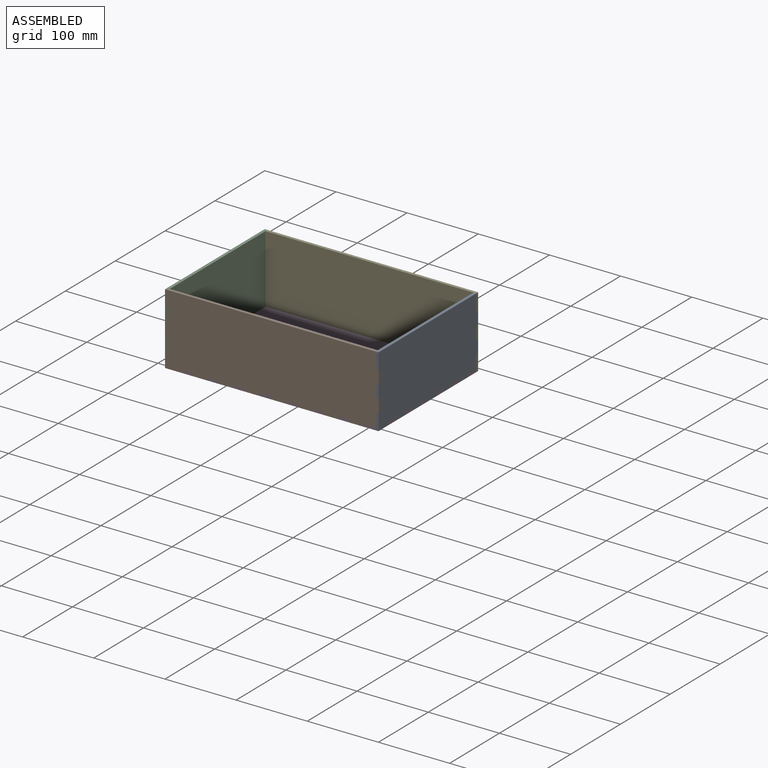
[diagram: assembled view]
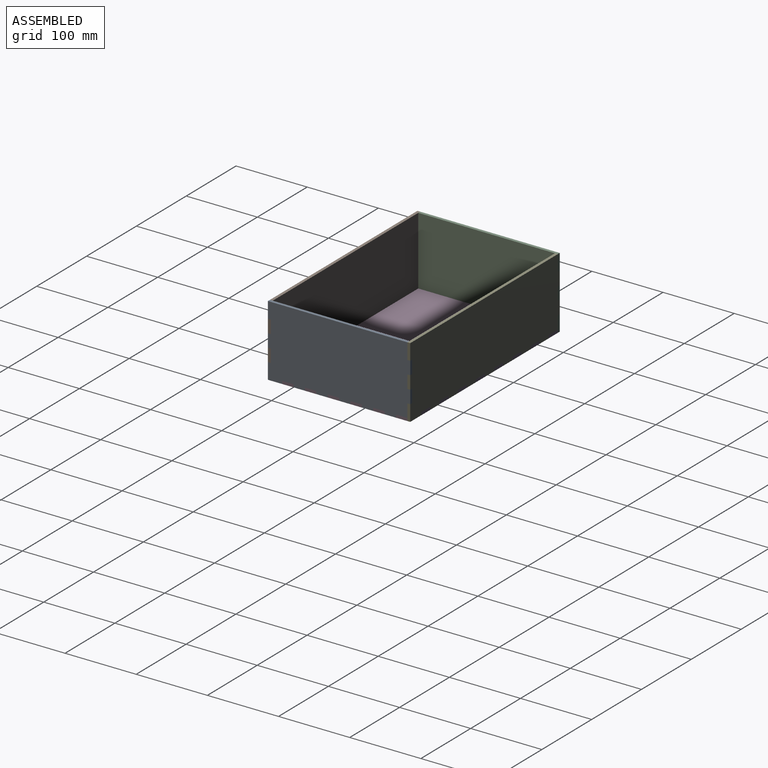
[diagram: assembled view, second angle]
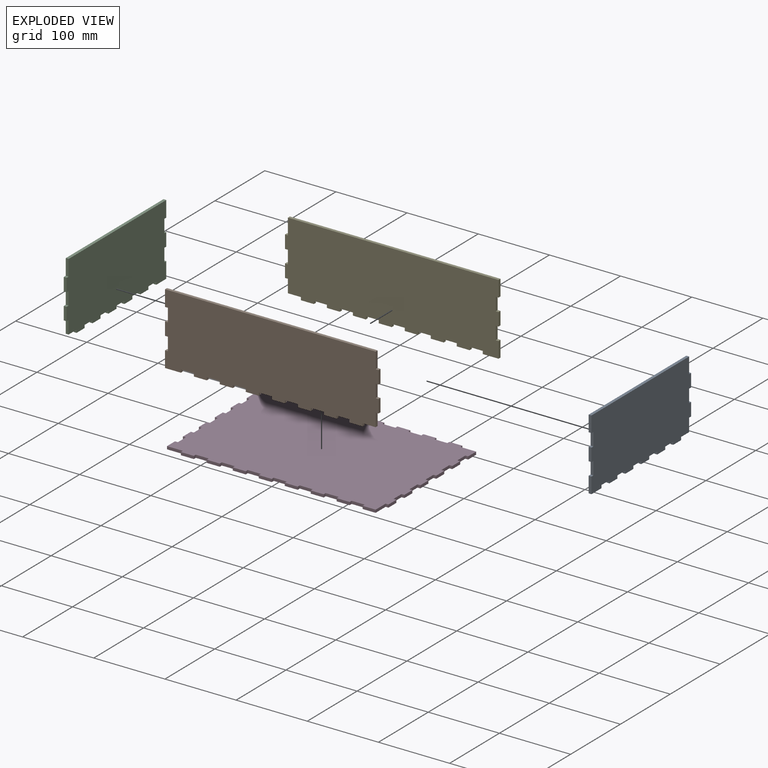
[diagram: exploded view]
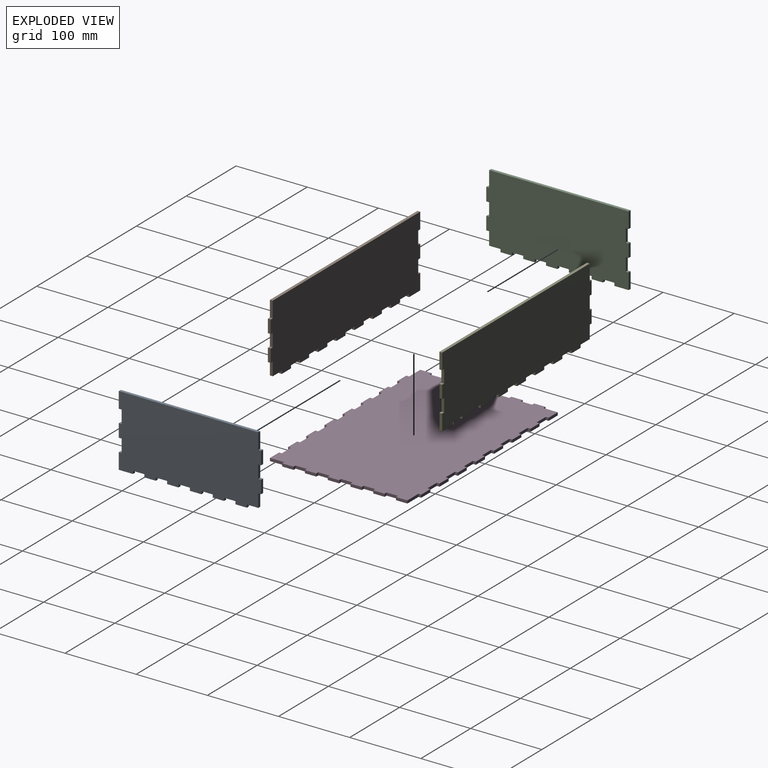
[diagram: exploded view, second angle]
ASSEMBLY  parts=5 mates=4
PART A: 44 faces, bbox 4x200x100 mm
  f0: plane 200x100mm, normal (-1,0,0), area 19216mm2, adj f1,f2,f3,f4,f5,f6,f7,f8
  f1: plane 22.4x4mm, normal (0,-1,0), area 89.6mm2, adj f0,f2,f42,f43
  f2: plane 196x4mm, normal (0,0,1), area 784mm2, adj f0,f1,f3,f43
  f3: plane 22.4x4mm, normal (0,1,0), area 89.6mm2, adj f0,f2,f4,f43
  f4: plane 4x4mm, normal (0,0,-1), area 16mm2, adj f0,f3,f5,f43
  f5: plane 18.4x4mm, normal (0,1,0), area 73.6mm2, adj f0,f4,f6,f43
  f6: plane 4x4mm, normal (0,0,1), area 16mm2, adj f0,f5,f7,f43
  f7: plane 18.4x4mm, normal (0,1,0), area 73.6mm2, adj f0,f6,f8,f43
  f8: plane 4x4mm, normal (0,0,-1), area 16mm2, adj f0,f7,f9,f43
  f9: plane 18.4x4mm, normal (0,1,0), area 73.6mm2, adj f0,f8,f10,f43
  f10: plane 4x4mm, normal (0,0,1), area 16mm2, adj f0,f9,f11,f43
  f11: plane 22.4x4mm, normal (0,1,0), area 89.6mm2, adj f0,f10,f12,f43
  f12: plane 20x4mm, normal (0,0,-1), area 80mm2, adj f0,f11,f13,f43
  f13: plane 4x4mm, normal (0,-1,0), area 16mm2, adj f0,f12,f14,f43
  f14: plane 16x4mm, normal (0,0,-1), area 64mm2, adj f0,f13,f15,f43
  f15: plane 4x4mm, normal (0,1,0), area 16mm2, adj f0,f14,f16,f43
  f16: plane 16x4mm, normal (0,0,-1), area 64mm2, adj f0,f15,f17,f43
  f17: plane 4x4mm, normal (0,-1,0), area 16mm2, adj f0,f16,f18,f43
  f18: plane 16x4mm, normal (0,0,-1), area 64mm2, adj f0,f17,f19,f43
  f19: plane 4x4mm, normal (0,1,0), area 16mm2, adj f0,f18,f20,f43
  f20: plane 16x4mm, normal (0,0,-1), area 64mm2, adj f0,f19,f21,f43
  f21: plane 4x4mm, normal (0,-1,0), area 16mm2, adj f0,f20,f22,f43
  f22: plane 16x4mm, normal (0,0,-1), area 64mm2, adj f0,f21,f23,f43
  f23: plane 4x4mm, normal (0,1,0), area 16mm2, adj f0,f22,f24,f43
  f24: plane 16x4mm, normal (0,0,-1), area 64mm2, adj f0,f23,f25,f43
  f25: plane 4x4mm, normal (0,-1,0), area 16mm2, adj f0,f24,f26,f43
  f26: plane 16x4mm, normal (0,0,-1), area 64mm2, adj f0,f25,f27,f43
  f27: plane 4x4mm, normal (0,1,0), area 16mm2, adj f0,f26,f28,f43
  f28: plane 16x4mm, normal (0,0,-1), area 64mm2, adj f0,f27,f29,f43
  f29: plane 4x4mm, normal (0,-1,0), area 16mm2, adj f0,f28,f30,f43
  f30: plane 16x4mm, normal (0,0,-1), area 64mm2, adj f0,f29,f31,f43
  f31: plane 4x4mm, normal (0,1,0), area 16mm2, adj f0,f30,f32,f43
  f32: plane 16x4mm, normal (0,0,-1), area 64mm2, adj f0,f31,f33,f43
  f33: plane 4x4mm, normal (0,-1,0), area 16mm2, adj f0,f32,f34,f43
  f34: plane 16x4mm, normal (0,0,-1), area 64mm2, adj f0,f33,f35,f43
  f35: plane 18.4x4mm, normal (0,-1,0), area 73.6mm2, adj f0,f34,f36,f43
  f36: plane 4x4mm, normal (0,0,-1), area 16mm2, adj f0,f35,f37,f43
  f37: plane 18.4x4mm, normal (0,-1,0), area 73.6mm2, adj f0,f36,f38,f43
  f38: plane 4x4mm, normal (0,0,1), area 16mm2, adj f0,f37,f39,f43
  f39: plane 18.4x4mm, normal (0,-1,0), area 73.6mm2, adj f0,f38,f40,f43
  f40: plane 4x4mm, normal (0,0,-1), area 16mm2, adj f0,f39,f41,f43
  f41: plane 18.4x4mm, normal (0,-1,0), area 73.6mm2, adj f0,f40,f42,f43
  f42: plane 4x4mm, normal (0,0,1), area 16mm2, adj f0,f1,f41,f43
  f43: plane 200x100mm, normal (1,0,0), area 19216mm2, adj f1,f2,f3,f4,f5,f6,f7,f8
PART B: 52 faces, bbox 300x4x100 mm
  f0: plane 300x100mm, normal (0,-1,0), area 29016mm2, adj f1,f2,f3,f4,f5,f6,f7,f8
  f1: plane 4x4mm, normal (0,0,1), area 16mm2, adj f0,f2,f48,f50
  f2: plane 22.4x4mm, normal (-1,0,0), area 89.6mm2, adj f0,f1,f3,f48
  f3: plane 22.25x4mm, normal (0,0,-1), area 89mm2, adj f0,f2,f4,f48
  f4: plane 4x4mm, normal (1,0,0), area 16mm2, adj f0,f3,f5,f48
  f5: plane 18.25x4mm, normal (0,0,-1), area 73mm2, adj f0,f4,f6,f48
  f6: plane 4x4mm, normal (-1,0,0), area 16mm2, adj f0,f5,f7,f48
  f7: plane 18.25x4mm, normal (0,0,-1), area 73mm2, adj f0,f6,f8,f48
  f8: plane 4x4mm, normal (1,0,0), area 16mm2, adj f0,f7,f9,f48
  f9: plane 18.25x4mm, normal (0,0,-1), area 73mm2, adj f0,f8,f10,f48
  f10: plane 4x4mm, normal (-1,0,0), area 16mm2, adj f0,f9,f11,f48
  f11: plane 18.25x4mm, normal (0,0,-1), area 73mm2, adj f0,f10,f12,f48
  f12: plane 4x4mm, normal (1,0,0), area 16mm2, adj f0,f11,f13,f48
  f13: plane 18.25x4mm, normal (0,0,-1), area 73mm2, adj f0,f12,f14,f48
  f14: plane 4x4mm, normal (-1,0,0), area 16mm2, adj f0,f13,f15,f48
  f15: plane 18.25x4mm, normal (0,0,-1), area 73mm2, adj f0,f14,f16,f48
  f16: plane 4x4mm, normal (1,0,0), area 16mm2, adj f0,f15,f17,f48
  f17: plane 18.25x4mm, normal (0,0,-1), area 73mm2, adj f0,f16,f18,f48
  f18: plane 4x4mm, normal (-1,0,0), area 16mm2, adj f0,f17,f19,f48
  f19: plane 18.25x4mm, normal (0,0,-1), area 73mm2, adj f0,f18,f20,f48
  f20: plane 4x4mm, normal (1,0,0), area 16mm2, adj f0,f19,f21,f48
  f21: plane 18.25x4mm, normal (0,0,-1), area 73mm2, adj f0,f20,f22,f48
  f22: plane 4x4mm, normal (-1,0,0), area 16mm2, adj f0,f21,f23,f48
  f23: plane 18.25x4mm, normal (0,0,-1), area 73mm2, adj f0,f22,f24,f48
  f24: plane 4x4mm, normal (1,0,0), area 16mm2, adj f0,f23,f25,f48
  f25: plane 18.25x4mm, normal (0,0,-1), area 73mm2, adj f0,f24,f26,f48
  f26: plane 4x4mm, normal (-1,0,0), area 16mm2, adj f0,f25,f27,f48
  f27: plane 18.25x4mm, normal (0,0,-1), area 73mm2, adj f0,f26,f28,f48
  f28: plane 4x4mm, normal (1,0,0), area 16mm2, adj f0,f27,f29,f48
  f29: plane 18.25x4mm, normal (0,0,-1), area 73mm2, adj f0,f28,f30,f48
  f30: plane 4x4mm, normal (-1,0,0), area 16mm2, adj f0,f29,f31,f48
  f31: plane 18.25x4mm, normal (0,0,-1), area 73mm2, adj f0,f30,f32,f48
  f32: plane 4x4mm, normal (1,0,0), area 16mm2, adj f0,f31,f33,f48
  f33: plane 18.25x4mm, normal (0,0,-1), area 73mm2, adj f0,f32,f34,f48
  f34: plane 18.4x4mm, normal (1,0,0), area 73.6mm2, adj f0,f33,f35,f48
  f35: plane 4x4mm, normal (0,0,-1), area 16mm2, adj f0,f34,f36,f48
  f36: plane 18.4x4mm, normal (1,0,0), area 73.6mm2, adj f0,f35,f37,f48
  f37: plane 4x4mm, normal (0,0,1), area 16mm2, adj f0,f36,f38,f48
  f38: plane 18.4x4mm, normal (1,0,0), area 73.6mm2, adj f0,f37,f39,f48
  f39: plane 4x4mm, normal (0,0,-1), area 16mm2, adj f0,f38,f40,f48
  f40: plane 18.4x4mm, normal (1,0,0), area 73.6mm2, adj f0,f39,f41,f48
  f41: plane 4x4mm, normal (0,0,1), area 16mm2, adj f0,f40,f42,f48
  f42: plane 22.4x4mm, normal (1,0,0), area 89.6mm2, adj f0,f41,f43,f48
  f43: plane 296x4mm, normal (0,0,1), area 1184mm2, adj f0,f42,f44,f48
  f44: plane 22.4x4mm, normal (-1,0,0), area 89.6mm2, adj f0,f43,f45,f48
  f45: plane 4x4mm, normal (0,0,-1), area 16mm2, adj f0,f44,f46,f48
  f46: plane 18.4x4mm, normal (-1,0,0), area 73.6mm2, adj f0,f45,f47,f48
  f47: plane 4x4mm, normal (0,0,1), area 16mm2, adj f0,f46,f48,f49
  f48: plane 300x100mm, normal (0,1,0), area 29016mm2, adj f1,f2,f3,f4,f5,f6,f7,f8
  f49: plane 18.4x4mm, normal (-1,0,0), area 73.6mm2, adj f0,f47,f48,f51
  f50: plane 18.4x4mm, normal (-1,0,0), area 73.6mm2, adj f0,f1,f48,f51
  f51: plane 4x4mm, normal (0,0,-1), area 16mm2, adj f0,f48,f49,f50
PART C: same geometry as A
PART D: 110 faces, bbox 300x200x4 mm
  f0: plane 22.25x4mm, normal (0,-1,0), area 89mm2, adj f1,f107,f108,f109
  f1: plane 4x4mm, normal (-1,0,0), area 16mm2, adj f0,f2,f108,f109
  f2: plane 18.25x4mm, normal (0,-1,0), area 73mm2, adj f1,f3,f108,f109
  f3: plane 4x4mm, normal (1,0,0), area 16mm2, adj f2,f4,f108,f109
  f4: plane 18.25x4mm, normal (0,-1,0), area 73mm2, adj f3,f5,f108,f109
  f5: plane 4x4mm, normal (-1,0,0), area 16mm2, adj f4,f6,f108,f109
  f6: plane 18.25x4mm, normal (0,-1,0), area 73mm2, adj f5,f7,f108,f109
  f7: plane 4x4mm, normal (1,0,0), area 16mm2, adj f6,f8,f108,f109
  f8: plane 18.25x4mm, normal (0,-1,0), area 73mm2, adj f7,f9,f108,f109
  f9: plane 4x4mm, normal (-1,0,0), area 16mm2, adj f8,f10,f108,f109
  f10: plane 18.25x4mm, normal (0,-1,0), area 73mm2, adj f9,f11,f108,f109
  f11: plane 4x4mm, normal (1,0,0), area 16mm2, adj f10,f12,f108,f109
  f12: plane 18.25x4mm, normal (0,-1,0), area 73mm2, adj f11,f13,f108,f109
  f13: plane 4x4mm, normal (-1,0,0), area 16mm2, adj f12,f14,f108,f109
  f14: plane 18.25x4mm, normal (0,-1,0), area 73mm2, adj f13,f15,f108,f109
  f15: plane 4x4mm, normal (1,0,0), area 16mm2, adj f14,f16,f108,f109
  f16: plane 18.25x4mm, normal (0,-1,0), area 73mm2, adj f15,f17,f108,f109
  f17: plane 4x4mm, normal (-1,0,0), area 16mm2, adj f16,f18,f108,f109
  f18: plane 18.25x4mm, normal (0,-1,0), area 73mm2, adj f17,f19,f108,f109
  f19: plane 4x4mm, normal (1,0,0), area 16mm2, adj f18,f20,f108,f109
  f20: plane 18.25x4mm, normal (0,-1,0), area 73mm2, adj f19,f21,f108,f109
  f21: plane 4x4mm, normal (-1,0,0), area 16mm2, adj f20,f22,f108,f109
  f22: plane 18.25x4mm, normal (0,-1,0), area 73mm2, adj f21,f23,f108,f109
  f23: plane 4x4mm, normal (1,0,0), area 16mm2, adj f22,f24,f108,f109
  f24: plane 18.25x4mm, normal (0,-1,0), area 73mm2, adj f23,f25,f108,f109
  f25: plane 4x4mm, normal (-1,0,0), area 16mm2, adj f24,f26,f108,f109
  f26: plane 18.25x4mm, normal (0,-1,0), area 73mm2, adj f25,f27,f108,f109
  f27: plane 4x4mm, normal (1,0,0), area 16mm2, adj f26,f28,f108,f109
  f28: plane 18.25x4mm, normal (0,-1,0), area 73mm2, adj f27,f29,f108,f109
  f29: plane 4x4mm, normal (-1,0,0), area 16mm2, adj f28,f30,f108,f109
  f30: plane 18.25x4mm, normal (0,-1,0), area 73mm2, adj f29,f31,f108,f109
  f31: plane 20x4mm, normal (1,0,0), area 80mm2, adj f30,f32,f108,f109
  f32: plane 4x4mm, normal (0,-1,0), area 16mm2, adj f31,f33,f108,f109
  f33: plane 16x4mm, normal (1,0,0), area 64mm2, adj f32,f34,f108,f109
  f34: plane 4x4mm, normal (0,1,0), area 16mm2, adj f33,f35,f108,f109
  f35: plane 16x4mm, normal (1,0,0), area 64mm2, adj f34,f36,f108,f109
  f36: plane 4x4mm, normal (0,-1,0), area 16mm2, adj f35,f37,f108,f109
  f37: plane 16x4mm, normal (1,0,0), area 64mm2, adj f36,f38,f108,f109
  f38: plane 4x4mm, normal (0,1,0), area 16mm2, adj f37,f39,f108,f109
  f39: plane 16x4mm, normal (1,0,0), area 64mm2, adj f38,f40,f108,f109
  f40: plane 4x4mm, normal (0,-1,0), area 16mm2, adj f39,f41,f108,f109
  f41: plane 16x4mm, normal (1,0,0), area 64mm2, adj f40,f42,f108,f109
  f42: plane 4x4mm, normal (0,1,0), area 16mm2, adj f41,f43,f108,f109
  f43: plane 16x4mm, normal (1,0,0), area 64mm2, adj f42,f44,f108,f109
  f44: plane 4x4mm, normal (0,-1,0), area 16mm2, adj f43,f45,f108,f109
  f45: plane 16x4mm, normal (1,0,0), area 64mm2, adj f44,f46,f108,f109
  f46: plane 4x4mm, normal (0,1,0), area 16mm2, adj f45,f47,f108,f109
  f47: plane 16x4mm, normal (1,0,0), area 64mm2, adj f46,f48,f108,f109
  f48: plane 4x4mm, normal (0,-1,0), area 16mm2, adj f47,f49,f108,f109
  f49: plane 16x4mm, normal (1,0,0), area 64mm2, adj f48,f50,f108,f109
  f50: plane 4x4mm, normal (0,1,0), area 16mm2, adj f49,f51,f108,f109
  f51: plane 16x4mm, normal (1,0,0), area 64mm2, adj f50,f52,f108,f109
  f52: plane 4x4mm, normal (0,-1,0), area 16mm2, adj f51,f53,f108,f109
  f53: plane 16x4mm, normal (1,0,0), area 64mm2, adj f52,f54,f108,f109
  f54: plane 22.25x4mm, normal (0,1,0), area 89mm2, adj f53,f55,f108,f109
  f55: plane 4x4mm, normal (1,0,0), area 16mm2, adj f54,f56,f108,f109
  f56: plane 18.25x4mm, normal (0,1,0), area 73mm2, adj f55,f57,f108,f109
  f57: plane 4x4mm, normal (-1,0,0), area 16mm2, adj f56,f58,f108,f109
  f58: plane 18.25x4mm, normal (0,1,0), area 73mm2, adj f57,f59,f108,f109
  f59: plane 4x4mm, normal (1,0,0), area 16mm2, adj f58,f60,f108,f109
  f60: plane 18.25x4mm, normal (0,1,0), area 73mm2, adj f59,f61,f108,f109
  f61: plane 4x4mm, normal (-1,0,0), area 16mm2, adj f60,f62,f108,f109
  f62: plane 18.25x4mm, normal (0,1,0), area 73mm2, adj f61,f63,f108,f109
  f63: plane 4x4mm, normal (1,0,0), area 16mm2, adj f62,f64,f108,f109
  f64: plane 18.25x4mm, normal (0,1,0), area 73mm2, adj f63,f65,f108,f109
  f65: plane 4x4mm, normal (-1,0,0), area 16mm2, adj f64,f66,f108,f109
  f66: plane 18.25x4mm, normal (0,1,0), area 73mm2, adj f65,f67,f108,f109
  f67: plane 4x4mm, normal (1,0,0), area 16mm2, adj f66,f68,f108,f109
  f68: plane 18.25x4mm, normal (0,1,0), area 73mm2, adj f67,f69,f108,f109
  f69: plane 4x4mm, normal (-1,0,0), area 16mm2, adj f68,f70,f108,f109
  f70: plane 18.25x4mm, normal (0,1,0), area 73mm2, adj f69,f71,f108,f109
  f71: plane 4x4mm, normal (1,0,0), area 16mm2, adj f70,f72,f108,f109
  f72: plane 18.25x4mm, normal (0,1,0), area 73mm2, adj f71,f73,f108,f109
  f73: plane 4x4mm, normal (-1,0,0), area 16mm2, adj f72,f74,f108,f109
  f74: plane 18.25x4mm, normal (0,1,0), area 73mm2, adj f73,f75,f108,f109
  f75: plane 4x4mm, normal (1,0,0), area 16mm2, adj f74,f76,f108,f109
  f76: plane 18.25x4mm, normal (0,1,0), area 73mm2, adj f75,f77,f108,f109
  f77: plane 4x4mm, normal (-1,0,0), area 16mm2, adj f76,f78,f108,f109
  f78: plane 18.25x4mm, normal (0,1,0), area 73mm2, adj f77,f79,f108,f109
  f79: plane 4x4mm, normal (1,0,0), area 16mm2, adj f78,f80,f108,f109
  f80: plane 18.25x4mm, normal (0,1,0), area 73mm2, adj f79,f81,f108,f109
  f81: plane 4x4mm, normal (-1,0,0), area 16mm2, adj f80,f82,f108,f109
  f82: plane 18.25x4mm, normal (0,1,0), area 73mm2, adj f81,f83,f108,f109
  f83: plane 4x4mm, normal (1,0,0), area 16mm2, adj f82,f84,f108,f109
  f84: plane 18.25x4mm, normal (0,1,0), area 73mm2, adj f83,f85,f108,f109
  f85: plane 20x4mm, normal (-1,0,0), area 80mm2, adj f84,f86,f108,f109
  f86: plane 4x4mm, normal (0,1,0), area 16mm2, adj f85,f87,f108,f109
  f87: plane 16x4mm, normal (-1,0,0), area 64mm2, adj f86,f88,f108,f109
  f88: plane 4x4mm, normal (0,-1,0), area 16mm2, adj f87,f89,f108,f109
  f89: plane 16x4mm, normal (-1,0,0), area 64mm2, adj f88,f90,f108,f109
  f90: plane 4x4mm, normal (0,1,0), area 16mm2, adj f89,f91,f108,f109
  f91: plane 16x4mm, normal (-1,0,0), area 64mm2, adj f90,f92,f108,f109
  f92: plane 4x4mm, normal (0,-1,0), area 16mm2, adj f91,f93,f108,f109
  f93: plane 16x4mm, normal (-1,0,0), area 64mm2, adj f92,f94,f108,f109
  f94: plane 4x4mm, normal (0,1,0), area 16mm2, adj f93,f95,f108,f109
  f95: plane 16x4mm, normal (-1,0,0), area 64mm2, adj f94,f96,f108,f109
  f96: plane 4x4mm, normal (0,-1,0), area 16mm2, adj f95,f97,f108,f109
  f97: plane 16x4mm, normal (-1,0,0), area 64mm2, adj f96,f98,f108,f109
  f98: plane 4x4mm, normal (0,1,0), area 16mm2, adj f97,f99,f108,f109
  f99: plane 16x4mm, normal (-1,0,0), area 64mm2, adj f98,f100,f108,f109
  f100: plane 4x4mm, normal (0,-1,0), area 16mm2, adj f99,f101,f108,f109
  f101: plane 16x4mm, normal (-1,0,0), area 64mm2, adj f100,f102,f108,f109
  f102: plane 4x4mm, normal (0,1,0), area 16mm2, adj f101,f103,f108,f109
  f103: plane 16x4mm, normal (-1,0,0), area 64mm2, adj f102,f104,f108,f109
  f104: plane 4x4mm, normal (0,-1,0), area 16mm2, adj f103,f105,f108,f109
  f105: plane 16x4mm, normal (-1,0,0), area 64mm2, adj f104,f106,f108,f109
  f106: plane 4x4mm, normal (0,1,0), area 16mm2, adj f105,f107,f108,f109
  f107: plane 16x4mm, normal (-1,0,0), area 64mm2, adj f0,f106,f108,f109
  f108: plane 300x200mm, normal (0,0,1), area 58000mm2, adj f0,f1,f2,f3,f4,f5,f6,f7
  f109: plane 300x200mm, normal (0,0,-1), area 58000mm2, adj f0,f1,f2,f3,f4,f5,f6,f7
PART E: same geometry as B
PLACE A rot(axis=(0,0,1),180deg) t=(0,0,0)mm
PLACE B at identity
PLACE C at identity
PLACE D at identity fixed
PLACE E rot(axis=(0,0,1),180deg) t=(0,0,0)mm
MATE fastened D.f35 <-> A.f43  axis (1,0,0) through (146,-56,0)mm
MATE fastened D.f58 <-> E.f48  axis (0,1,0) through (100.37,96,0)mm
MATE fastened D.f89 <-> C.f43  axis (-1,0,0) through (-146,56,0)mm
MATE fastened D.f4 <-> B.f48  axis (0,-1,0) through (-100.37,-96,0)mm
